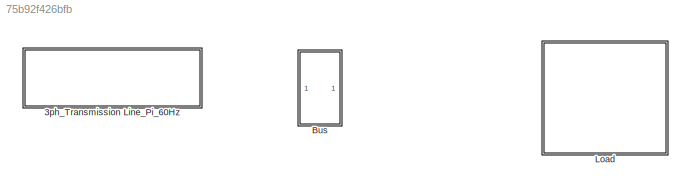
MODEL slx_75b92f426bfb
KIND library
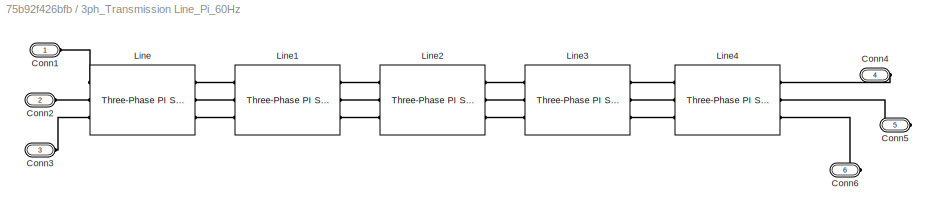
BLOCK [SubSystem] 3ph_Transmission Line_Pi_60Hz
  FunctionWithSeparateData = off
  MaskHideContents = off
  MinAlgLoopOccurrences = off
  Opaque = off
  Ports = [0, 0, 0, 0, 0, 3, 3]
  PropExecContextOutsideSubsystem = off
  RTWSystemCode = Auto
  RequestExecContextInheritance = off
BLOCK [PMIOPort] 3ph_Transmission Line_Pi_60Hz/Conn1
  Port = 1
  Side = Left
BLOCK [PMIOPort] 3ph_Transmission Line_Pi_60Hz/Conn2
  Port = 2
  Side = Left
BLOCK [PMIOPort] 3ph_Transmission Line_Pi_60Hz/Conn3
  Port = 3
  Side = Left
BLOCK [PMIOPort] 3ph_Transmission Line_Pi_60Hz/Conn4
  Port = 4
  Side = Right
BLOCK [PMIOPort] 3ph_Transmission Line_Pi_60Hz/Conn5
  Port = 5
  Side = Right
BLOCK [PMIOPort] 3ph_Transmission Line_Pi_60Hz/Conn6
  Port = 6
  Side = Right
BLOCK [Reference] 3ph_Transmission Line_Pi_60Hz/Line  REF=powerlib/Elements/Three-Phase
PI Section Line
  AttributesFormatString = \n
  Capacitances = [ct co]/100
  Frequency = 60
  Inductances = [ lt lo] /100
  LConnTagsString = a|b|c
  Length = 20
  Ports = [0, 0, 0, 0, 0, 3, 3]
  RConnTagsString = A|B|C
  Resistances = [rt ro] /100
  SourceBlock = powerlib/Elements/Three-Phase\nPI Section Line
  SourceType = Three-Phase PI Section Line
BLOCK [Reference] 3ph_Transmission Line_Pi_60Hz/Line1  REF=powerlib/Elements/Three-Phase
PI Section Line
  AttributesFormatString = \n
  Capacitances = [ct co]/100
  Frequency = 60
  Inductances = [ lt lo] /100
  LConnTagsString = a|b|c
  Length = 20
  Ports = [0, 0, 0, 0, 0, 3, 3]
  RConnTagsString = A|B|C
  Resistances = [rt ro] /100
  SourceBlock = powerlib/Elements/Three-Phase\nPI Section Line
  SourceType = Three-Phase PI Section Line
BLOCK [Reference] 3ph_Transmission Line_Pi_60Hz/Line2  REF=powerlib/Elements/Three-Phase
PI Section Line
  AttributesFormatString = \n
  Capacitances = [ct co]/100
  Frequency = 60
  Inductances = [ lt lo] /100
  LConnTagsString = a|b|c
  Length = 20
  Ports = [0, 0, 0, 0, 0, 3, 3]
  RConnTagsString = A|B|C
  Resistances = [rt ro] /100
  SourceBlock = powerlib/Elements/Three-Phase\nPI Section Line
  SourceType = Three-Phase PI Section Line
BLOCK [Reference] 3ph_Transmission Line_Pi_60Hz/Line3  REF=powerlib/Elements/Three-Phase
PI Section Line
  AttributesFormatString = \n
  Capacitances = [ct co]/100
  Frequency = 60
  Inductances = [ lt lo] /100
  LConnTagsString = a|b|c
  Length = 20
  Ports = [0, 0, 0, 0, 0, 3, 3]
  RConnTagsString = A|B|C
  Resistances = [rt ro] /100
  SourceBlock = powerlib/Elements/Three-Phase\nPI Section Line
  SourceType = Three-Phase PI Section Line
BLOCK [Reference] 3ph_Transmission Line_Pi_60Hz/Line4  REF=powerlib/Elements/Three-Phase
PI Section Line
  AttributesFormatString = \n
  Capacitances = [ct co]/100
  Frequency = 60
  Inductances = [ lt lo] /100
  LConnTagsString = a|b|c
  Length = 20
  Ports = [0, 0, 0, 0, 0, 3, 3]
  RConnTagsString = A|B|C
  Resistances = [rt ro] /100
  SourceBlock = powerlib/Elements/Three-Phase\nPI Section Line
  SourceType = Three-Phase PI Section Line
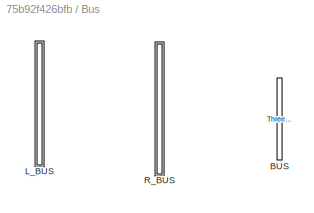
BLOCK [SubSystem] Bus
  FunctionWithSeparateData = off
  MaskHideContents = off
  MinAlgLoopOccurrences = off
  Opaque = off
  Ports = []
  PropExecContextOutsideSubsystem = off
  RTWSystemCode = Auto
  RequestExecContextInheritance = off
BLOCK [Reference] Bus/BUS  REF=powerlib/Measurements/Three-Phase
V-I Measurement
  CurrentMeasurement = yes
  Ipu = on
  LabelI = Iabc
  LabelV = Vabc
  OutputType = Complex
  PSBequivalent = 0
  Pbase = 100e6
  PhasorSimulation = off
  Ports = [0, 2, 0, 0, 0, 3, 3]
  SetLabelI = on
  SetLabelV = on
  SourceBlock = powerlib/Measurements/Three-Phase\nV-I Measurement
  SourceType = Three-Phase VI Measurement
  Vbase = 13.8e3
  VoltageMeasurement = phase-to-ground
  Vpu = on
  VpuLL = off
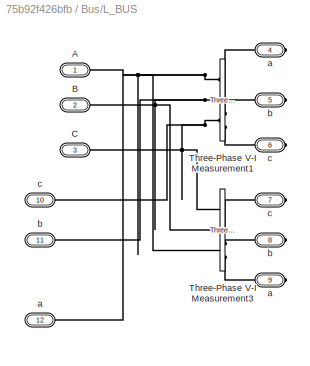
BLOCK [SubSystem] Bus/L_BUS
  FunctionWithSeparateData = off
  MaskHideContents = off
  MinAlgLoopOccurrences = off
  Opaque = off
  Ports = [0, 0, 0, 0, 0, 6, 6]
  PropExecContextOutsideSubsystem = off
  RTWSystemCode = Auto
  RequestExecContextInheritance = off
  ShowPortLabels = SignalName
BLOCK [PMIOPort] Bus/L_BUS/A
  Port = 1
  Side = Left
BLOCK [PMIOPort] Bus/L_BUS/B
  Port = 2
  Side = Left
BLOCK [PMIOPort] Bus/L_BUS/C
  Port = 3
  Side = Left
BLOCK [Reference] Bus/L_BUS/Three-Phase V-I Measurement1  REF=powerlib/Measurements/Three-Phase
V-I Measurement
  CurrentMeasurement = yes
  Ipu = on
  LabelI = Iabc_7
  LabelV = Vabc_7
  OutputType = Complex
  PSBequivalent = 0
  Pbase = 100e6
  PhasorSimulation = off
  Ports = [0, 2, 0, 0, 0, 3, 3]
  SetLabelI = on
  SetLabelV = on
  SourceBlock = powerlib/Measurements/Three-Phase\nV-I Measurement
  SourceType = Three-Phase VI Measurement
  Vbase = 230e3
  VoltageMeasurement = phase-to-ground
  Vpu = on
  VpuLL = off
BLOCK [Reference] Bus/L_BUS/Three-Phase V-I Measurement3  REF=powerlib/Measurements/Three-Phase
V-I Measurement
  CurrentMeasurement = yes
  Ipu = on
  LabelI = Iab
  LabelV = Vab
  OutputType = Complex
  PSBequivalent = 0
  Pbase = 100e6
  PhasorSimulation = off
  Ports = [0, 2, 0, 0, 0, 3, 3]
  SetLabelI = on
  SetLabelV = on
  SourceBlock = powerlib/Measurements/Three-Phase\nV-I Measurement
  SourceType = Three-Phase VI Measurement
  Vbase = 230e3
  VoltageMeasurement = phase-to-ground
  Vpu = on
  VpuLL = off
BLOCK [PMIOPort] Bus/L_BUS/a
  Port = 4
  Side = Right
BLOCK [PMIOPort] Bus/L_BUS/a 
  Port = 9
  Side = Right
BLOCK [PMIOPort] Bus/L_BUS/a  
  Port = 12
  Side = Left
BLOCK [PMIOPort] Bus/L_BUS/b
  Port = 5
  Side = Right
BLOCK [PMIOPort] Bus/L_BUS/b 
  Port = 8
  Side = Right
BLOCK [PMIOPort] Bus/L_BUS/b  
  Port = 11
  Side = Left
BLOCK [PMIOPort] Bus/L_BUS/c
  Port = 6
  Side = Right
BLOCK [PMIOPort] Bus/L_BUS/c 
  Port = 7
  Side = Right
BLOCK [PMIOPort] Bus/L_BUS/c  
  Port = 10
  Side = Left
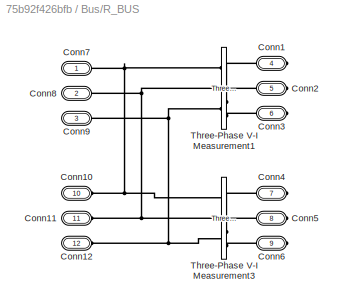
BLOCK [SubSystem] Bus/R_BUS
  FunctionWithSeparateData = off
  MaskHideContents = off
  MinAlgLoopOccurrences = off
  Opaque = off
  Ports = [0, 0, 0, 0, 0, 6, 6]
  PropExecContextOutsideSubsystem = off
  RTWSystemCode = Auto
  RequestExecContextInheritance = off
BLOCK [PMIOPort] Bus/R_BUS/Conn1
  Port = 4
  Side = Right
BLOCK [PMIOPort] Bus/R_BUS/Conn10
  Port = 10
  Side = Left
BLOCK [PMIOPort] Bus/R_BUS/Conn11
  Port = 11
  Side = Left
BLOCK [PMIOPort] Bus/R_BUS/Conn12
  Port = 12
  Side = Left
BLOCK [PMIOPort] Bus/R_BUS/Conn2
  Port = 5
  Side = Right
BLOCK [PMIOPort] Bus/R_BUS/Conn3
  Port = 6
  Side = Right
BLOCK [PMIOPort] Bus/R_BUS/Conn4
  Port = 7
  Side = Right
BLOCK [PMIOPort] Bus/R_BUS/Conn5
  Port = 8
  Side = Right
BLOCK [PMIOPort] Bus/R_BUS/Conn6
  Port = 9
  Side = Right
BLOCK [PMIOPort] Bus/R_BUS/Conn7
  Port = 1
  Side = Left
BLOCK [PMIOPort] Bus/R_BUS/Conn8
  Port = 2
  Side = Left
BLOCK [PMIOPort] Bus/R_BUS/Conn9
  Port = 3
  Side = Left
BLOCK [Reference] Bus/R_BUS/Three-Phase V-I Measurement1  REF=powerlib/Measurements/Three-Phase
V-I Measurement
  CurrentMeasurement = yes
  Ipu = on
  LabelI = Iabc_9
  LabelV = Vabc_9
  OutputType = Complex
  PSBequivalent = 0
  Pbase = 100e6
  PhasorSimulation = off
  Ports = [0, 2, 0, 0, 0, 3, 3]
  SetLabelI = on
  SetLabelV = on
  SourceBlock = powerlib/Measurements/Three-Phase\nV-I Measurement
  SourceType = Three-Phase VI Measurement
  Vbase = 230e3
  VoltageMeasurement = phase-to-ground
  Vpu = on
  VpuLL = off
BLOCK [Reference] Bus/R_BUS/Three-Phase V-I Measurement3  REF=powerlib/Measurements/Three-Phase
V-I Measurement
  CurrentMeasurement = yes
  Ipu = on
  LabelI = Iabc
  LabelV = Vabc
  OutputType = Complex
  PSBequivalent = 0
  Pbase = 100e6
  PhasorSimulation = off
  Ports = [0, 2, 0, 0, 0, 3, 3]
  SetLabelI = on
  SetLabelV = on
  SourceBlock = powerlib/Measurements/Three-Phase\nV-I Measurement
  SourceType = Three-Phase VI Measurement
  Vbase = 230e3
  VoltageMeasurement = phase-to-ground
  Vpu = on
  VpuLL = off
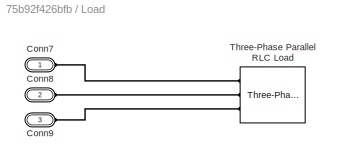
BLOCK [SubSystem] Load
  FunctionWithSeparateData = off
  MaskHideContents = off
  MinAlgLoopOccurrences = off
  Opaque = off
  Ports = [0, 0, 0, 0, 0, 3]
  PropExecContextOutsideSubsystem = off
  RTWSystemCode = Auto
  RequestExecContextInheritance = off
  ShowPortLabels = FromPortBlockName
BLOCK [PMIOPort] Load/Conn7
  Port = 1
  Side = Left
BLOCK [PMIOPort] Load/Conn8
  Port = 2
  Side = Left
BLOCK [PMIOPort] Load/Conn9
  Port = 3
  Side = Left
BLOCK [Reference] Load/Three-Phase Parallel RLC Load  REF=powerlib/Elements/Three-Phase
Parallel RLC Load
  ActivePower = 90e6
  AttributesFormatString = \n
  CapacitivePower = 0
  Configuration = Y (grounded)
  InductivePower = 30e6
  LConnTagsString = A|B|C
  LoadType = constant PQ
  Measurements = None
  NominalFrequency = 60
  NominalVoltage = (230000)*1.01315
  Ports = [0, 0, 0, 0, 0, 3]
  SourceBlock = powerlib/Elements/Three-Phase\nParallel RLC Load
  SourceType = Three-Phase Parallel RLC Load
PLINE 3ph_Transmission Line_Pi_60Hz/Conn1:RConn1 -- 3ph_Transmission Line_Pi_60Hz/Line:LConn1
PLINE 3ph_Transmission Line_Pi_60Hz/Conn2:RConn1 -- 3ph_Transmission Line_Pi_60Hz/Line:LConn2
PLINE 3ph_Transmission Line_Pi_60Hz/Conn3:RConn1 -- 3ph_Transmission Line_Pi_60Hz/Line:LConn3
PLINE 3ph_Transmission Line_Pi_60Hz/Conn4:RConn1 -- 3ph_Transmission Line_Pi_60Hz/Line4:RConn1
PLINE 3ph_Transmission Line_Pi_60Hz/Conn5:RConn1 -- 3ph_Transmission Line_Pi_60Hz/Line4:RConn2
PLINE 3ph_Transmission Line_Pi_60Hz/Conn6:RConn1 -- 3ph_Transmission Line_Pi_60Hz/Line4:RConn3
PLINE 3ph_Transmission Line_Pi_60Hz/Line1:LConn1 -- 3ph_Transmission Line_Pi_60Hz/Line:RConn1
PLINE 3ph_Transmission Line_Pi_60Hz/Line1:LConn2 -- 3ph_Transmission Line_Pi_60Hz/Line:RConn2
PLINE 3ph_Transmission Line_Pi_60Hz/Line1:LConn3 -- 3ph_Transmission Line_Pi_60Hz/Line:RConn3
PLINE 3ph_Transmission Line_Pi_60Hz/Line1:RConn1 -- 3ph_Transmission Line_Pi_60Hz/Line2:LConn1
PLINE 3ph_Transmission Line_Pi_60Hz/Line1:RConn2 -- 3ph_Transmission Line_Pi_60Hz/Line2:LConn2
PLINE 3ph_Transmission Line_Pi_60Hz/Line1:RConn3 -- 3ph_Transmission Line_Pi_60Hz/Line2:LConn3
PLINE 3ph_Transmission Line_Pi_60Hz/Line2:RConn1 -- 3ph_Transmission Line_Pi_60Hz/Line3:LConn1
PLINE 3ph_Transmission Line_Pi_60Hz/Line2:RConn2 -- 3ph_Transmission Line_Pi_60Hz/Line3:LConn2
PLINE 3ph_Transmission Line_Pi_60Hz/Line2:RConn3 -- 3ph_Transmission Line_Pi_60Hz/Line3:LConn3
PLINE 3ph_Transmission Line_Pi_60Hz/Line3:RConn1 -- 3ph_Transmission Line_Pi_60Hz/Line4:LConn1
PLINE 3ph_Transmission Line_Pi_60Hz/Line3:RConn2 -- 3ph_Transmission Line_Pi_60Hz/Line4:LConn2
PLINE 3ph_Transmission Line_Pi_60Hz/Line3:RConn3 -- 3ph_Transmission Line_Pi_60Hz/Line4:LConn3
PNET net1: Bus/L_BUS/A:RConn1 -- Bus/L_BUS/Three-Phase V-I Measurement1:LConn1 -- Bus/L_BUS/Three-Phase V-I Measurement3:LConn3 -- Bus/L_BUS/a  :RConn1
PNET net2: Bus/L_BUS/B:RConn1 -- Bus/L_BUS/Three-Phase V-I Measurement1:LConn2 -- Bus/L_BUS/Three-Phase V-I Measurement3:LConn2 -- Bus/L_BUS/b  :RConn1
PNET net3: Bus/L_BUS/C:RConn1 -- Bus/L_BUS/Three-Phase V-I Measurement1:LConn3 -- Bus/L_BUS/Three-Phase V-I Measurement3:LConn1 -- Bus/L_BUS/c  :RConn1
PLINE Bus/L_BUS/Three-Phase V-I Measurement1:RConn1 -- Bus/L_BUS/a:RConn1
PLINE Bus/L_BUS/Three-Phase V-I Measurement1:RConn2 -- Bus/L_BUS/b:RConn1
PLINE Bus/L_BUS/Three-Phase V-I Measurement1:RConn3 -- Bus/L_BUS/c:RConn1
PLINE Bus/L_BUS/Three-Phase V-I Measurement3:RConn1 -- Bus/L_BUS/c :RConn1
PLINE Bus/L_BUS/Three-Phase V-I Measurement3:RConn2 -- Bus/L_BUS/b :RConn1
PLINE Bus/L_BUS/Three-Phase V-I Measurement3:RConn3 -- Bus/L_BUS/a :RConn1
PNET net4: Bus/R_BUS/Conn10:RConn1 -- Bus/R_BUS/Conn7:RConn1 -- Bus/R_BUS/Three-Phase V-I Measurement1:LConn1 -- Bus/R_BUS/Three-Phase V-I Measurement3:LConn1
PNET net5: Bus/R_BUS/Conn11:RConn1 -- Bus/R_BUS/Conn8:RConn1 -- Bus/R_BUS/Three-Phase V-I Measurement1:LConn2 -- Bus/R_BUS/Three-Phase V-I Measurement3:LConn2
PNET net6: Bus/R_BUS/Conn12:RConn1 -- Bus/R_BUS/Conn9:RConn1 -- Bus/R_BUS/Three-Phase V-I Measurement1:LConn3 -- Bus/R_BUS/Three-Phase V-I Measurement3:LConn3
PLINE Bus/R_BUS/Conn1:RConn1 -- Bus/R_BUS/Three-Phase V-I Measurement1:RConn1
PLINE Bus/R_BUS/Conn2:RConn1 -- Bus/R_BUS/Three-Phase V-I Measurement1:RConn2
PLINE Bus/R_BUS/Conn3:RConn1 -- Bus/R_BUS/Three-Phase V-I Measurement1:RConn3
PLINE Bus/R_BUS/Conn4:RConn1 -- Bus/R_BUS/Three-Phase V-I Measurement3:RConn1
PLINE Bus/R_BUS/Conn5:RConn1 -- Bus/R_BUS/Three-Phase V-I Measurement3:RConn2
PLINE Bus/R_BUS/Conn6:RConn1 -- Bus/R_BUS/Three-Phase V-I Measurement3:RConn3
PLINE Load/Conn7:RConn1 -- Load/Three-Phase Parallel RLC Load:LConn1
PLINE Load/Conn8:RConn1 -- Load/Three-Phase Parallel RLC Load:LConn2
PLINE Load/Conn9:RConn1 -- Load/Three-Phase Parallel RLC Load:LConn3
note: PNET lines group multi-terminal physical nets as a canonical sorted terminal list (undirected conserving connections); 2-terminal nets keep the pairwise PLINE form
